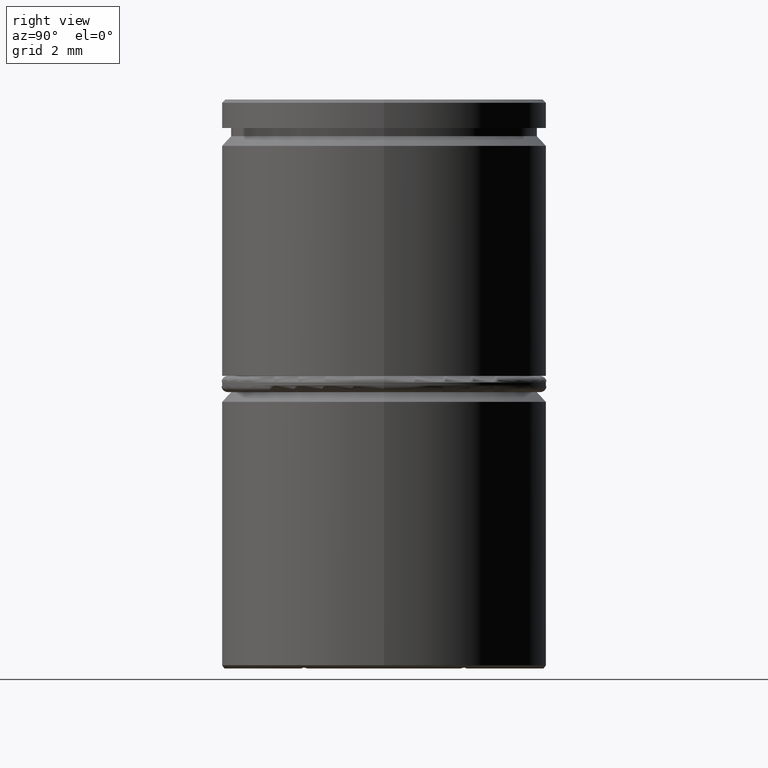
[diagram: clean part render]
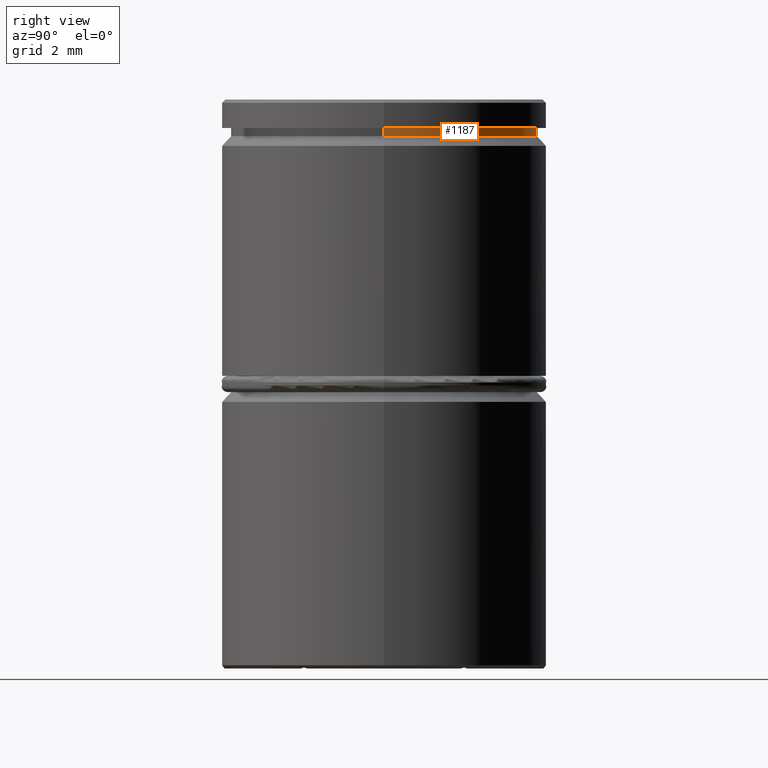
[diagram: same view with one face highlighted and labeled with its STEP entity id]
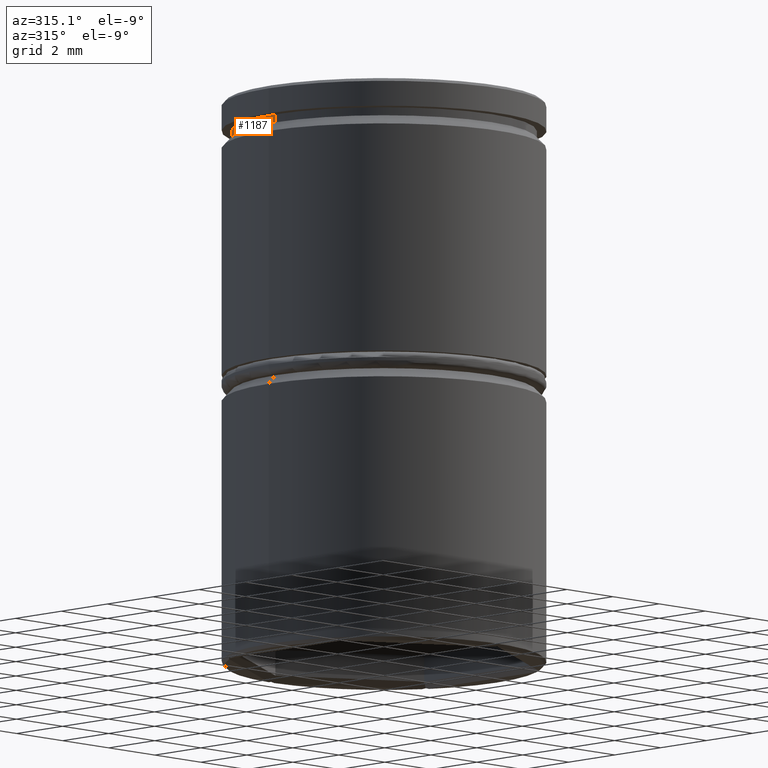
[diagram: same view with one face highlighted and labeled with its STEP entity id]
A machine part, right view. The second image highlights one B-rep face of the part: STEP entity #1187.
A second angle (auxiliary view) of the same face is appended — the face is thin or edge-on in the first view.
In plain terms, the highlighted cylindrical surface (partial cylindrical patch) has radius 4.7 mm, axis along (-0, -0, 1).
Its self-contained STEP definition (entity closure, byte-faithful):
#16 = CARTESIAN_POINT ( 'NONE',  ( 0.000000000000000000, 0.000000000000000000, -0.8749999999999998890 ) ) ;
#24 = EDGE_CURVE ( 'NONE', #433, #98, #612, .T. ) ;
#30 = CARTESIAN_POINT ( 'NONE',  ( 0.000000000000000000, 0.000000000000000000, 0.000000000000000000 ) ) ;
#38 = DIRECTION ( 'NONE',  ( -0.000000000000000000, -0.000000000000000000, 1.000000000000000000 ) ) ;
#48 = FACE_OUTER_BOUND ( 'NONE', #1115, .T. ) ;
#98 = VERTEX_POINT ( 'NONE', #690 ) ;
#100 = ORIENTED_EDGE ( 'NONE', *, *, #1087, .T. ) ;
#108 = CARTESIAN_POINT ( 'NONE',  ( 4.700000000000000178, 0.000000000000000000, 0.000000000000000000 ) ) ;
#129 = DIRECTION ( 'NONE',  ( -0.000000000000000000, -0.000000000000000000, 1.000000000000000000 ) ) ;
#146 = ORIENTED_EDGE ( 'NONE', *, *, #512, .T. ) ;
#151 = VECTOR ( 'NONE', #246, 1000.000000000000000 ) ;
#164 = CARTESIAN_POINT ( 'NONE',  ( 0.000000000000000000, 0.000000000000000000, -1.125000000000000222 ) ) ;
#168 = DIRECTION ( 'NONE',  ( -0.000000000000000000, -0.000000000000000000, 1.000000000000000000 ) ) ;
#246 = DIRECTION ( 'NONE',  ( -0.000000000000000000, -0.000000000000000000, 1.000000000000000000 ) ) ;
#289 = VERTEX_POINT ( 'NONE', #961 ) ;
#333 = CARTESIAN_POINT ( 'NONE',  ( -4.700000000000000178, 5.755839955992559655E-16, 0.000000000000000000 ) ) ;
#377 = CIRCLE ( 'NONE', #501, 4.700000000000000178 ) ;
#433 = VERTEX_POINT ( 'NONE', #688 ) ;
#440 = ORIENTED_EDGE ( 'NONE', *, *, #1071, .F. ) ;
#446 = DIRECTION ( 'NONE',  ( 1.000000000000000000, 0.000000000000000000, 0.000000000000000000 ) ) ;
#453 = DIRECTION ( 'NONE',  ( -0.000000000000000000, -0.000000000000000000, 1.000000000000000000 ) ) ;
#466 = DIRECTION ( 'NONE',  ( 1.000000000000000000, 0.000000000000000000, 0.000000000000000000 ) ) ;
#501 = AXIS2_PLACEMENT_3D ( 'NONE', #164, #168, #803 ) ;
#512 = EDGE_CURVE ( 'NONE', #753, #289, #377, .T. ) ;
#612 = CIRCLE ( 'NONE', #790, 4.700000000000000178 ) ;
#617 = VECTOR ( 'NONE', #453, 1000.000000000000000 ) ;
#663 = LINE ( 'NONE', #333, #151 ) ;
#688 = CARTESIAN_POINT ( 'NONE',  ( 4.700000000000000178, 0.000000000000000000, -0.8749999999999998890 ) ) ;
#690 = CARTESIAN_POINT ( 'NONE',  ( -4.700000000000000178, 5.755839955992559655E-16, -0.8749999999999998890 ) ) ;
#726 = AXIS2_PLACEMENT_3D ( 'NONE', #30, #38, #466 ) ;
#751 = ORIENTED_EDGE ( 'NONE', *, *, #24, .F. ) ;
#753 = VERTEX_POINT ( 'NONE', #887 ) ;
#774 = CYLINDRICAL_SURFACE ( 'NONE', #726, 4.700000000000000178 ) ;
#790 = AXIS2_PLACEMENT_3D ( 'NONE', #16, #129, #446 ) ;
#803 = DIRECTION ( 'NONE',  ( 1.000000000000000000, 0.000000000000000000, 0.000000000000000000 ) ) ;
#857 = LINE ( 'NONE', #108, #617 ) ;
#887 = CARTESIAN_POINT ( 'NONE',  ( 4.700000000000000178, 0.000000000000000000, -1.125000000000000222 ) ) ;
#961 = CARTESIAN_POINT ( 'NONE',  ( -4.700000000000000178, 5.755839955992559655E-16, -1.125000000000000222 ) ) ;
#1071 = EDGE_CURVE ( 'NONE', #753, #433, #857, .T. ) ;
#1087 = EDGE_CURVE ( 'NONE', #289, #98, #663, .T. ) ;
#1115 = EDGE_LOOP ( 'NONE', ( #146, #100, #751, #440 ) ) ;
#1187 = ADVANCED_FACE ( 'NONE', ( #48 ), #774, .T. ) ;